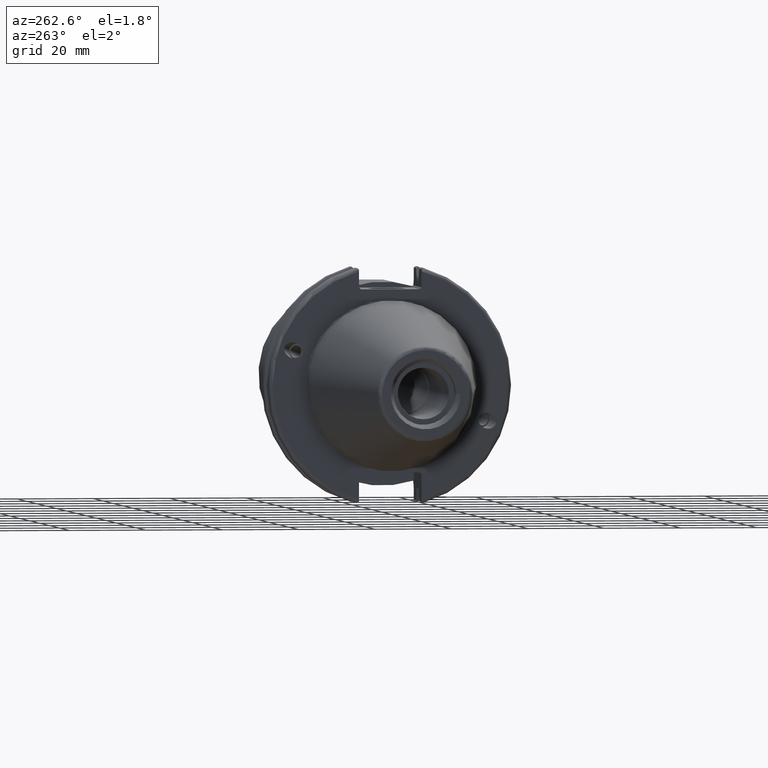
[diagram: clean part render]
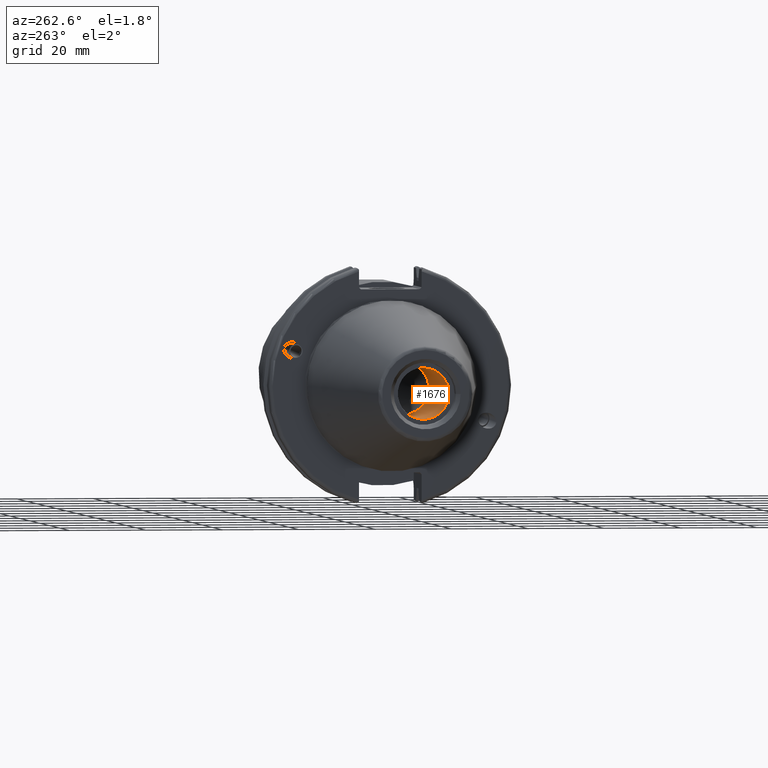
[diagram: same view with one face highlighted and labeled with its STEP entity id]
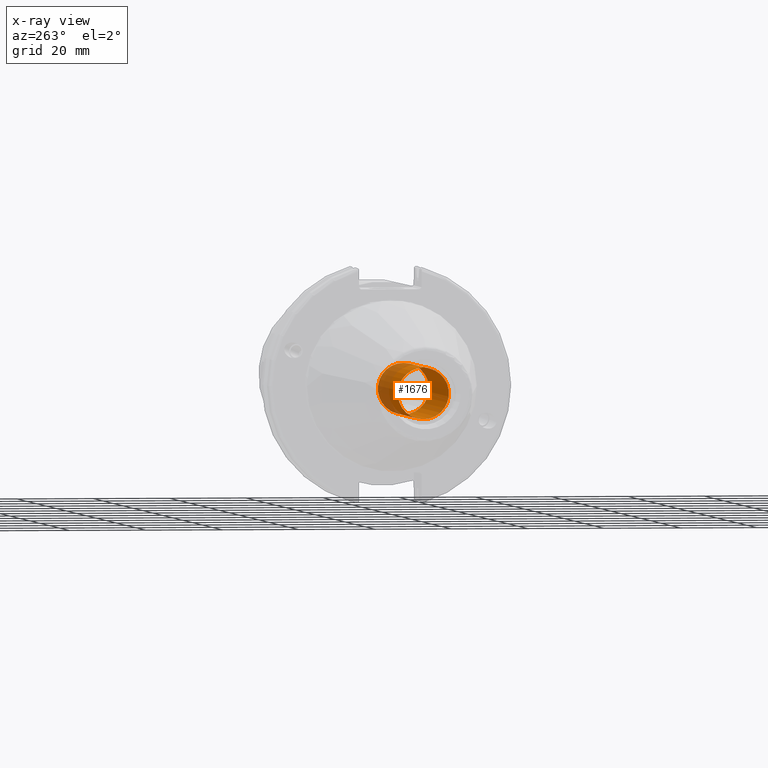
[diagram: x-ray of the same camera — body ghosted, the highlighted face saturated]
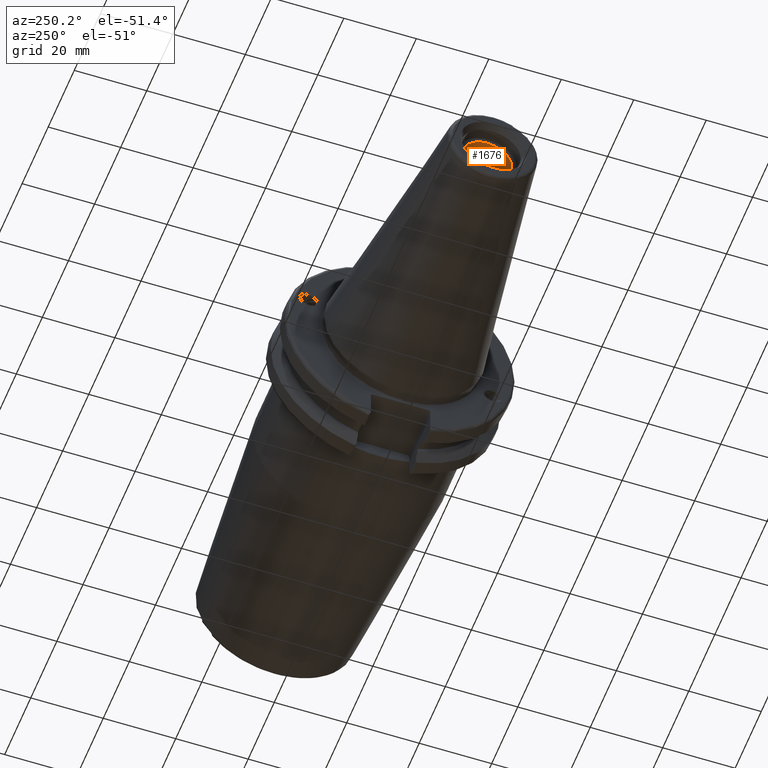
[diagram: same view with one face highlighted and labeled with its STEP entity id]
A machine part, auxiliary view. The second image highlights one B-rep face of the part: STEP entity #1676.
The next image is the same camera in x-ray: the body ghosted, the highlighted face saturated — about 27% of this face is hidden behind the body in this view.
A second angle (auxiliary view) of the same face is appended — the face is thin or edge-on in the first view.
In plain terms, the highlighted cylindrical surface (bore or boss wall) has radius 6.6929 mm, axis along (-1, 0, 0).
Its self-contained STEP definition (entity closure, byte-faithful):
#134=LINE('',#2992,#236);
#236=VECTOR('',#2243,6.6929);
#305=CYLINDRICAL_SURFACE('',#1866,6.6929);
#443=FACE_OUTER_BOUND('',#550,.T.);
#550=EDGE_LOOP('',(#1357,#1358,#1359,#1360));
#653=CIRCLE('',#1865,6.6929);
#654=CIRCLE('',#1867,6.6929);
#794=VERTEX_POINT('',#2986);
#795=VERTEX_POINT('',#2990);
#1003=EDGE_CURVE('',#794,#794,#653,.T.);
#1005=EDGE_CURVE('',#795,#795,#654,.T.);
#1006=EDGE_CURVE('',#795,#794,#134,.T.);
#1357=ORIENTED_EDGE('',*,*,#1005,.F.);
#1358=ORIENTED_EDGE('',*,*,#1006,.T.);
#1359=ORIENTED_EDGE('',*,*,#1003,.F.);
#1360=ORIENTED_EDGE('',*,*,#1006,.F.);
#1676=ADVANCED_FACE('',(#443),#305,.F.);
#1865=AXIS2_PLACEMENT_3D('',#2987,#2236,#2237);
#1866=AXIS2_PLACEMENT_3D('',#2989,#2239,#2240);
#1867=AXIS2_PLACEMENT_3D('',#2991,#2241,#2242);
#2236=DIRECTION('center_axis',(-1.,0.,0.));
#2237=DIRECTION('ref_axis',(0.,0.,1.));
#2239=DIRECTION('center_axis',(-1.,0.,0.));
#2240=DIRECTION('ref_axis',(0.,0.,1.));
#2241=DIRECTION('center_axis',(1.,0.,0.));
#2242=DIRECTION('ref_axis',(0.,0.,1.));
#2243=DIRECTION('',(1.,0.,0.));
#2986=CARTESIAN_POINT('',(-23.25,-8.19643856201332E-16,-6.6929));
#2987=CARTESIAN_POINT('Origin',(-23.25,0.,0.));
#2989=CARTESIAN_POINT('Origin',(-45.75,0.,0.));
#2990=CARTESIAN_POINT('',(-63.45,8.19643856201332E-16,-6.6929));
#2991=CARTESIAN_POINT('Origin',(-63.45,0.,0.));
#2992=CARTESIAN_POINT('',(-45.75,-8.19643856201332E-16,-6.6929));